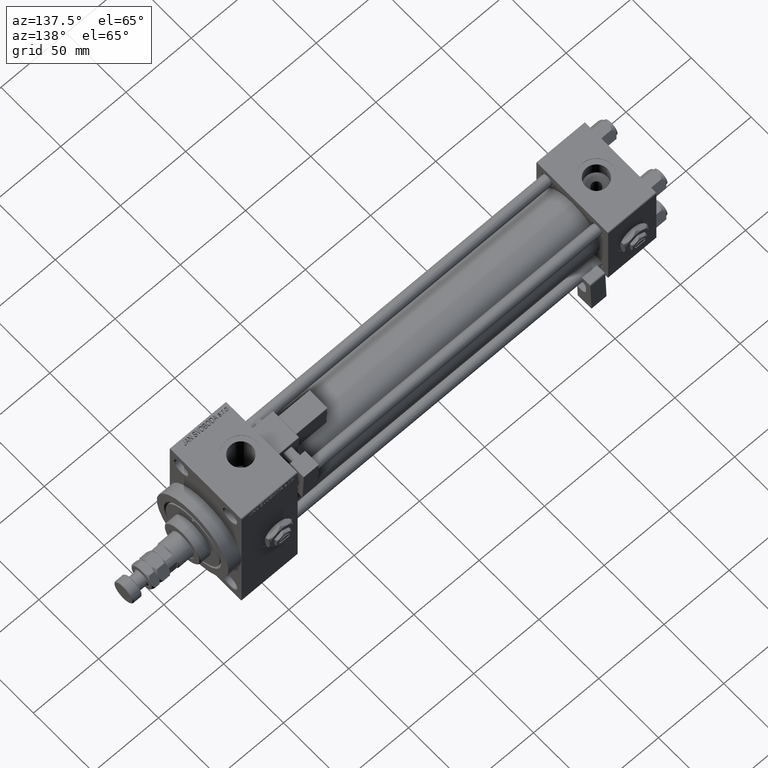
[diagram: clean part render]
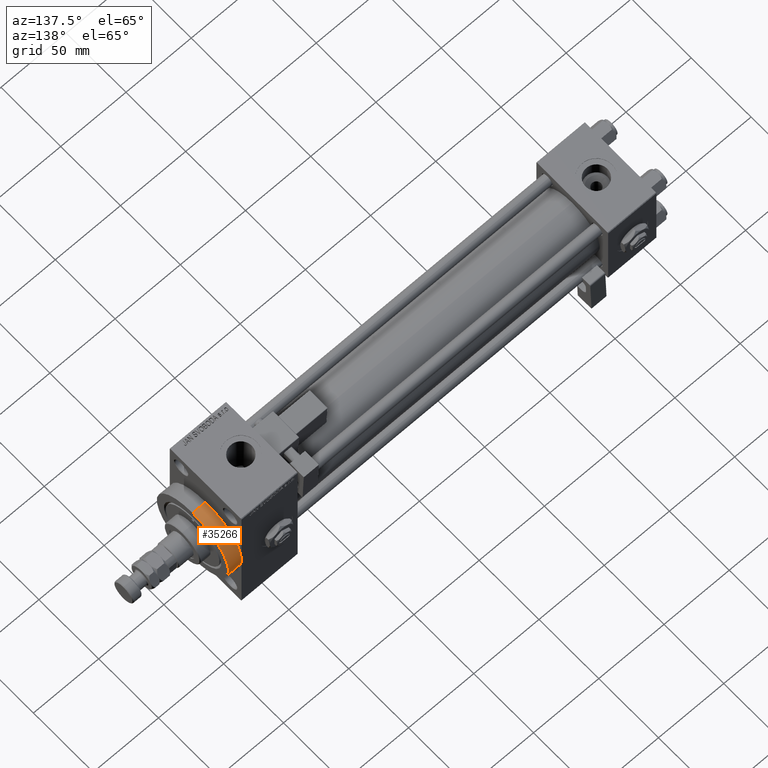
[diagram: same view with one face highlighted and labeled with its STEP entity id]
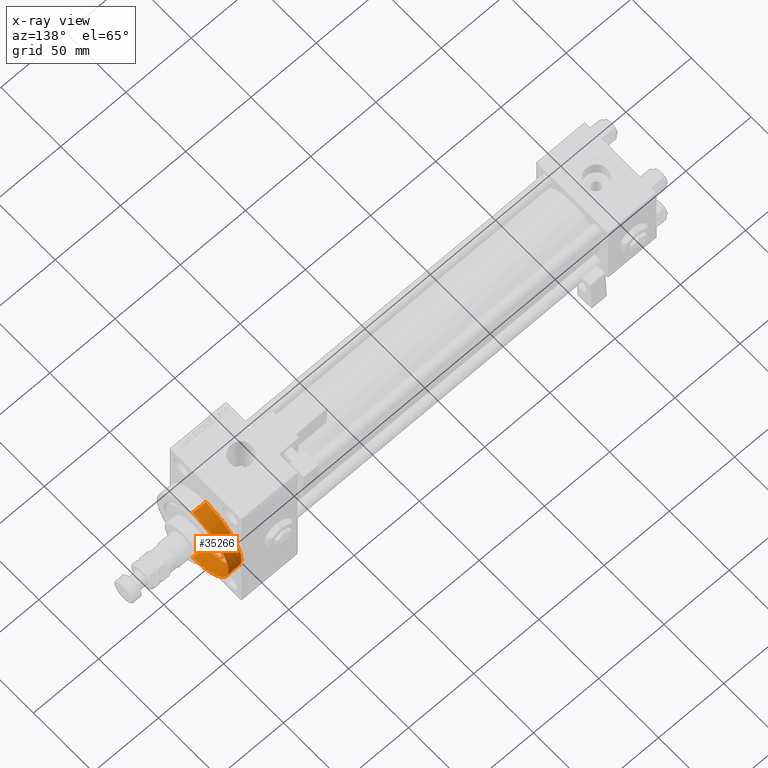
[diagram: x-ray of the same camera — body ghosted, the highlighted face saturated]
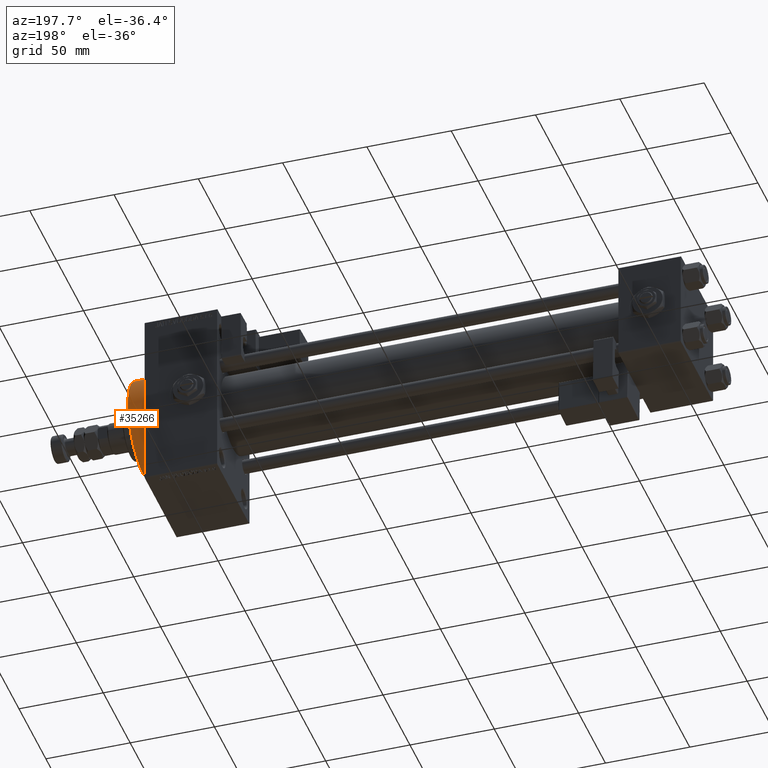
[diagram: same view with one face highlighted and labeled with its STEP entity id]
A machine part, auxiliary view. The second image highlights one B-rep face of the part: STEP entity #35266.
The next image is the same camera in x-ray: the body ghosted, the highlighted face saturated — about 0% of this face is hidden behind the body in this view.
A second angle (auxiliary view) of the same face is appended — the face is thin or edge-on in the first view.
In plain terms, the highlighted cylindrical surface (partial cylindrical patch) has radius 30 mm, axis along (-1, -0, -0).
Its self-contained STEP definition (entity closure, byte-faithful):
#740 = ORIENTED_EDGE ( 'NONE', *, *, #2687, .F. ) ;
#2687 = EDGE_CURVE ( 'NONE', #28171, #48174, #3537, .T. ) ;
#3537 = LINE ( 'NONE', #41526, #24152 ) ;
#6192 = EDGE_CURVE ( 'NONE', #41825, #48174, #12224, .T. ) ;
#6714 = DIRECTION ( 'NONE',  ( 0.000000000000000000, 0.000000000000000000, -1.000000000000000000 ) ) ;
#7279 = CARTESIAN_POINT ( 'NONE',  ( 327.9999999999999432, 3.673940397442059178E-15, -30.00000000000000000 ) ) ;
#8413 = ORIENTED_EDGE ( 'NONE', *, *, #6192, .T. ) ;
#8701 = FACE_OUTER_BOUND ( 'NONE', #33431, .T. ) ;
#10070 = CARTESIAN_POINT ( 'NONE',  ( 317.9999999999999432, 0.000000000000000000, 30.00000000000000000 ) ) ;
#12224 = CIRCLE ( 'NONE', #27651, 30.00000000000000000 ) ;
#12481 = DIRECTION ( 'NONE',  ( 0.000000000000000000, 0.000000000000000000, 1.000000000000000000 ) ) ;
#15333 = LINE ( 'NONE', #40169, #40806 ) ;
#18478 = ORIENTED_EDGE ( 'NONE', *, *, #22054, .T. ) ;
#19576 = DIRECTION ( 'NONE',  ( 0.000000000000000000, 0.000000000000000000, -1.000000000000000000 ) ) ;
#20465 = ORIENTED_EDGE ( 'NONE', *, *, #41016, .T. ) ;
#21014 = DIRECTION ( 'NONE',  ( -1.000000000000000000, -0.000000000000000000, -0.000000000000000000 ) ) ;
#22054 = EDGE_CURVE ( 'NONE', #25172, #48627, #15333, .T. ) ;
#22347 = EDGE_CURVE ( 'NONE', #25172, #28171, #25309, .T. ) ;
#23177 = DIRECTION ( 'NONE',  ( -1.000000000000000000, -0.000000000000000000, -0.000000000000000000 ) ) ;
#24152 = VECTOR ( 'NONE', #21014, 1000.000000000000000 ) ;
#25172 = VERTEX_POINT ( 'NONE', #7279 ) ;
#25309 = CIRCLE ( 'NONE', #47720, 30.00000000000000000 ) ;
#25454 = CARTESIAN_POINT ( 'NONE',  ( 327.9999999999999432, 0.000000000000000000, 30.00000000000000000 ) ) ;
#26133 = ORIENTED_EDGE ( 'NONE', *, *, #22347, .F. ) ;
#27167 = CARTESIAN_POINT ( 'NONE',  ( 327.9999999999999432, 0.000000000000000000, 0.000000000000000000 ) ) ;
#27556 = AXIS2_PLACEMENT_3D ( 'NONE', #46024, #33866, #37665 ) ;
#27651 = AXIS2_PLACEMENT_3D ( 'NONE', #42878, #35056, #6714 ) ;
#27687 = DIRECTION ( 'NONE',  ( 1.000000000000000000, 0.000000000000000000, 0.000000000000000000 ) ) ;
#28171 = VERTEX_POINT ( 'NONE', #25454 ) ;
#29761 = DIRECTION ( 'NONE',  ( -1.000000000000000000, -0.000000000000000000, -0.000000000000000000 ) ) ;
#33431 = EDGE_LOOP ( 'NONE', ( #26133, #18478, #20465, #8413, #740 ) ) ;
#33798 = CARTESIAN_POINT ( 'NONE',  ( 317.9999999999999432, 30.00000000000000000, 0.000000000000000000 ) ) ;
#33866 = DIRECTION ( 'NONE',  ( 1.000000000000000000, 0.000000000000000000, 0.000000000000000000 ) ) ;
#34319 = AXIS2_PLACEMENT_3D ( 'NONE', #53219, #29761, #12481 ) ;
#35056 = DIRECTION ( 'NONE',  ( 1.000000000000000000, 0.000000000000000000, 0.000000000000000000 ) ) ;
#35266 = ADVANCED_FACE ( 'NONE', ( #8701 ), #37315, .T. ) ;
#37315 = CYLINDRICAL_SURFACE ( 'NONE', #34319, 30.00000000000000000 ) ;
#37665 = DIRECTION ( 'NONE',  ( 0.000000000000000000, 0.000000000000000000, -1.000000000000000000 ) ) ;
#40169 = CARTESIAN_POINT ( 'NONE',  ( 327.9999999999999432, 3.673940397442059178E-15, -30.00000000000000000 ) ) ;
#40462 = CIRCLE ( 'NONE', #27556, 30.00000000000000000 ) ;
#40806 = VECTOR ( 'NONE', #23177, 1000.000000000000000 ) ;
#41016 = EDGE_CURVE ( 'NONE', #48627, #41825, #40462, .T. ) ;
#41526 = CARTESIAN_POINT ( 'NONE',  ( 327.9999999999999432, 0.000000000000000000, 30.00000000000000000 ) ) ;
#41825 = VERTEX_POINT ( 'NONE', #33798 ) ;
#42878 = CARTESIAN_POINT ( 'NONE',  ( 317.9999999999999432, 0.000000000000000000, 0.000000000000000000 ) ) ;
#46024 = CARTESIAN_POINT ( 'NONE',  ( 317.9999999999999432, 0.000000000000000000, 0.000000000000000000 ) ) ;
#47720 = AXIS2_PLACEMENT_3D ( 'NONE', #27167, #27687, #19576 ) ;
#48174 = VERTEX_POINT ( 'NONE', #10070 ) ;
#48627 = VERTEX_POINT ( 'NONE', #49250 ) ;
#49250 = CARTESIAN_POINT ( 'NONE',  ( 317.9999999999999432, 3.673940397442059178E-15, -30.00000000000000000 ) ) ;
#53219 = CARTESIAN_POINT ( 'NONE',  ( 327.9999999999999432, 0.000000000000000000, 0.000000000000000000 ) ) ;